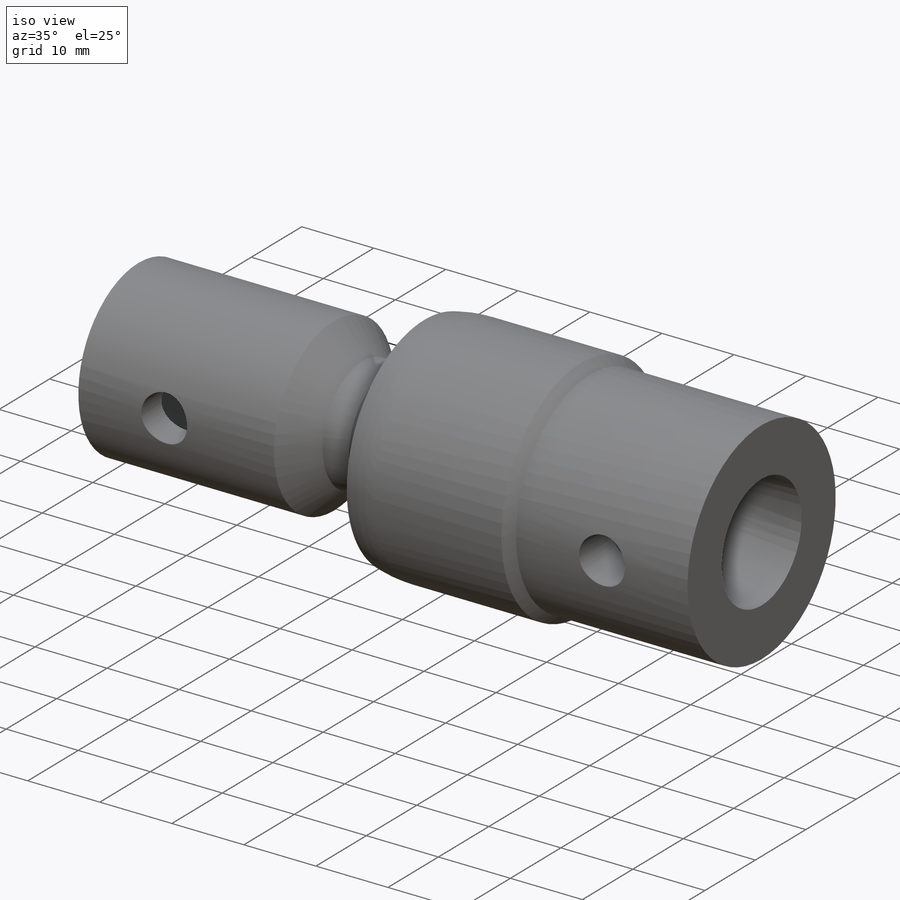
[diagram: iso view]
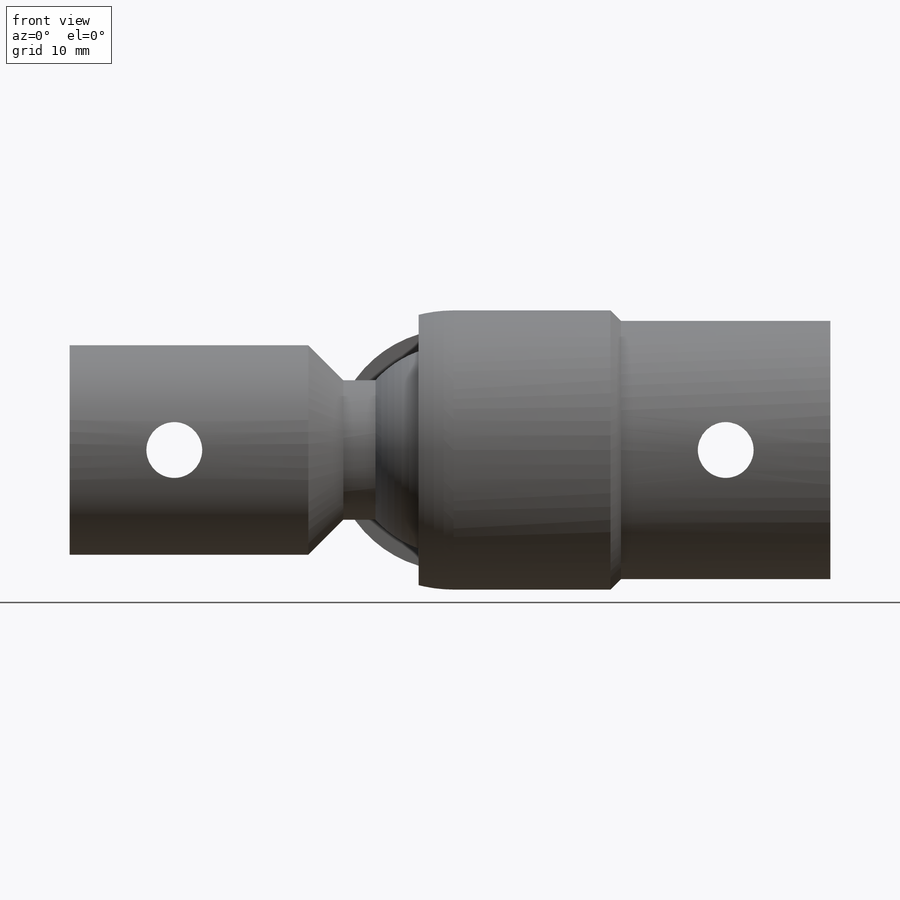
[diagram: front view]
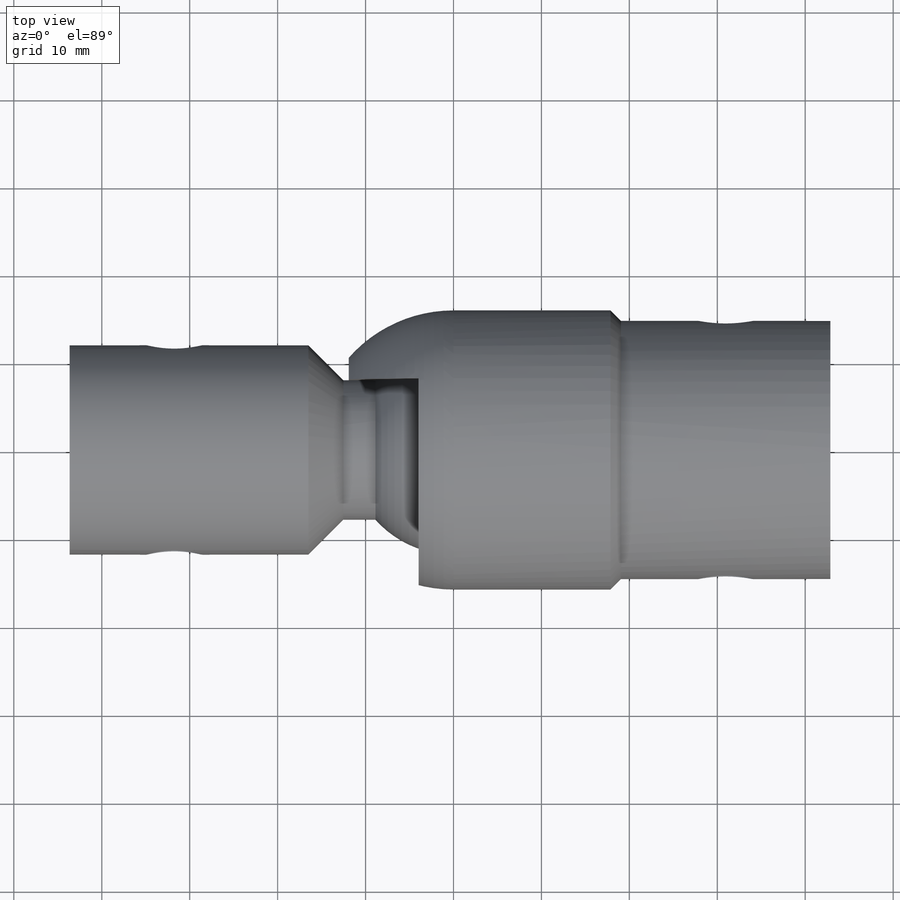
[diagram: top view]
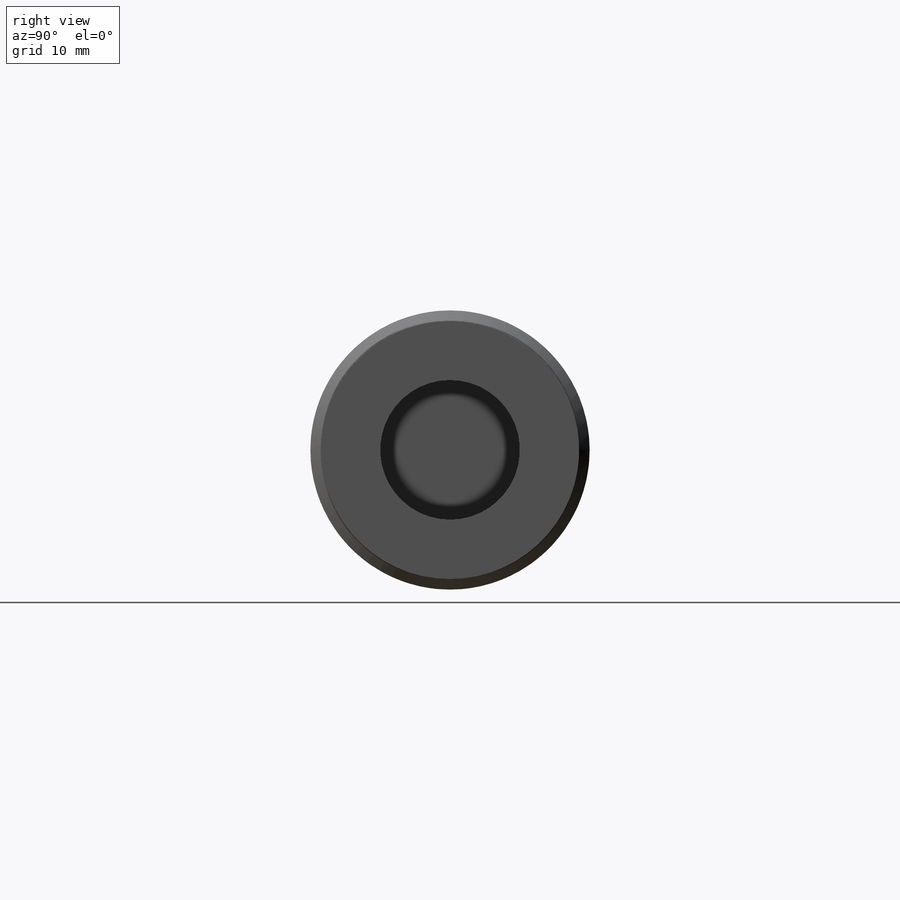
[diagram: right view]
SOLIDWORKS PART (.sldprt)
format: sldprt  version: not decoded by parser v0  size: 693,760 bytes
history: native  units: mm
features: sketch x8, cut_extrude x3, revolve x2, material x1, cut_revolve x1, move_body x1 (+15 scaffold rows collapsed)
feature tree (31):
  scaffold x15  (default folders/planes/origin — collapsed)
  material  "Material <not specified>"
  sketch  "Sketch0"  dims[c1.F=~43.65752mm c1.G=42.8625mm c1.A=15.875mm c1.H=23.8125mm c1.E=~29.36875mm c1.D=23.8125mm c1.C=31.75mm c1.D1=~16.407975mm c2.D1=45.0deg c2.D2=~16.961937mm c3.D2=45.0deg c3.D3=~69.05752mm c4.D3=45.0deg c4.D4=~6.096867mm c4.D5=~7.31624mm c4.D6=9.525mm]
  sketch  "Sketch1"
  revolve  "Revolve1"  Angle=360deg
  sketch  "Sketch2"
  revolve  "Revolve2"  Angle=360deg
  sketch  "Sketch3"
  cut_extrude  "Cut-Extrude1"  Depth=7.9375mm
  sketch  "Sketch5"
  cut_extrude  "Cut-Extrude2"  [1 undecoded]
  sketch  "Sketch6"  dims[D1=0.254mm]
  cut_revolve  "Cut-Revolve2"  Angle=360deg
  sketch  "Sketch8"  dims[c1.D1=6.35mm c1.D2=6.35mm c2.D1=~6.189206mm]
  cut_extrude  "Cut-Extrude3"  [1 undecoded]
  move_body  "Body-Move/Copy1"
  sketch  "Sketch7"  dims[D1=15.875mm]
decode coverage: 8 of 15 modeling features carry decoded parameters
note: ~ marks probable driven/reference dimensions
note: 2 parameter values undecoded
note: suppression state not decoded; provenance and decode notes live in map.json
